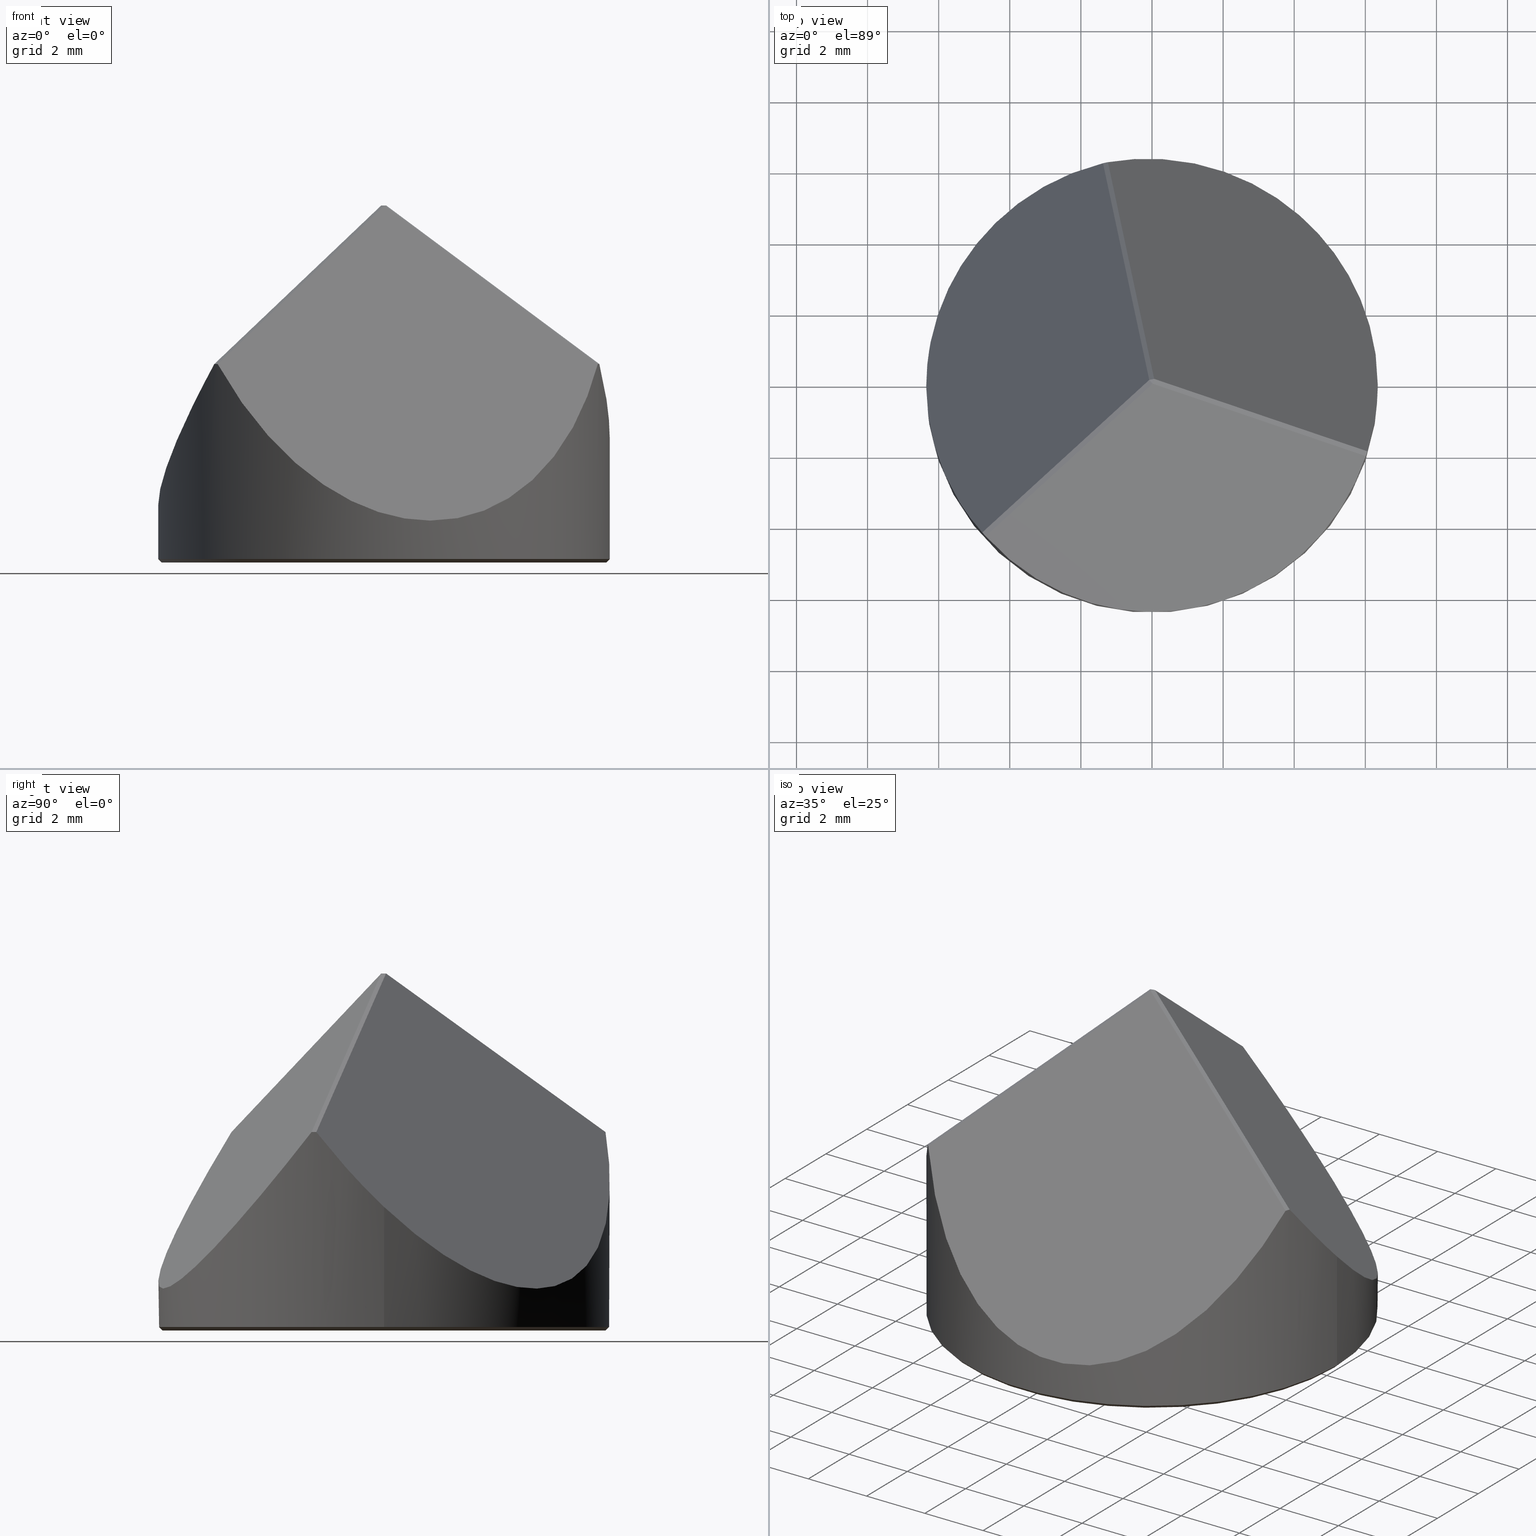
[diagram: canonical four-view strip — front | top / right | iso, engineering-drawing reading convention]
A machine part, canonical four-view strip (front | top / right | iso — engineering-drawing reading convention). The complete STEP part file that produces these views, byte-faithful:
ISO-10303-21;
HEADER;
FILE_DESCRIPTION (( 'STEP AP214' ),
    '1' );
FILE_NAME ('GP16-012-1.STEP',
    '2024-08-13T02:30:25',
    ( 'Windows User' ),
    ( 'P R C' ),
    'SwSTEP 2.0',
    'SolidWorks 2022',
    '' );
FILE_SCHEMA (( 'AUTOMOTIVE_DESIGN' ));
ENDSEC;

DATA;
#1 = ORIENTED_EDGE ( 'NONE', *, *, #110, .T. ) ;
#2 = ADVANCED_FACE ( 'NONE', ( #76 ), #105, .T. ) ;
#3 = ORIENTED_EDGE ( 'NONE', *, *, #196, .T. ) ;
#4 = VECTOR ( 'NONE', #290, 1000.000000000000114 ) ;
#5 = ORIENTED_EDGE ( 'NONE', *, *, #56, .T. ) ;
#6 = UNCERTAINTY_MEASURE_WITH_UNIT (LENGTH_MEASURE( 1.000000000000000082E-05 ), #15, 'distance_accuracy_value', 'NONE');
#7 = EDGE_LOOP ( 'NONE', ( #315, #55, #190, #287 ) ) ;
#8 = DIRECTION ( 'NONE',  ( -0.6678251671697869041, 0.7443181753085479357, 0.000000000000000000 ) ) ;
#9 = VECTOR ( 'NONE', #64, 1000.000000000000000 ) ;
#10 = CARTESIAN_POINT ( 'NONE',  ( -0.07760903269836591511, 0.02536739462952482260, 9.374658006696643398 ) ) ;
#11 = DIRECTION ( 'NONE',  ( 0.1190464341463334241, -0.5649436076728147071, -0.8164965809277265896 ) ) ;
#12 = DIRECTION ( 'NONE',  ( -0.7760903269836916252, 0.2536739462952641300, 0.5773502691896265082 ) ) ;
#13 = CYLINDRICAL_SURFACE ( 'NONE', #167, 6.349999999999999645 ) ;
#14 = DIRECTION ( 'NONE',  ( 0.1683570817218979776, -0.7989509119468815035, 0.5773502691896249539 ) ) ;
#15 =( LENGTH_UNIT ( ) NAMED_UNIT ( * ) SI_UNIT ( .MILLI., .METRE. ) );
#16 = EDGE_CURVE ( 'NONE', #226, #189, #292, .T. ) ;
#17 = PLANE ( 'NONE',  #133 ) ;
#18 =( NAMED_UNIT ( * ) PLANE_ANGLE_UNIT ( ) SI_UNIT ( $, .RADIAN. ) );
#19 = VERTEX_POINT ( 'NONE', #351 ) ;
#20 = CARTESIAN_POINT ( 'NONE',  ( -3.346683942978853743, -2.907747193824004928, 6.269017013437424346 ) ) ;
#21 = PRESENTATION_LAYER_ASSIGNMENT (  '', '', ( #161 ) ) ;
#22 = CARTESIAN_POINT ( 'NONE',  ( -1.240062539693429722, 6.227739951029515275, 4.913675856748689341 ) ) ;
#23 = CARTESIAN_POINT ( 'NONE',  ( -1.240062539693429722, 6.227739951029515275, 4.913675856748689341 ) ) ;
#24 = CARTESIAN_POINT ( 'NONE',  ( 6.250000000000000000, 0.000000000000000000, -0.6700000000000000400 ) ) ;
#25 = ORIENTED_EDGE ( 'NONE', *, *, #278, .T. ) ;
#26 = ORIENTED_EDGE ( 'NONE', *, *, #16, .T. ) ;
#27 = VERTEX_POINT ( 'NONE', #172 ) ;
#28 = VERTEX_POINT ( 'NONE', #85 ) ;
#29 = VECTOR ( 'NONE', #114, 1000.000000000000000 ) ;
#30 = ORIENTED_EDGE ( 'NONE', *, *, #47, .F. ) ;
#31 = EDGE_CURVE ( 'NONE', #28, #273, #74, .T. ) ;
#32 = ADVANCED_FACE ( 'NONE', ( #119 ), #116, .T. ) ;
#33 = CARTESIAN_POINT ( 'NONE',  ( -1.020309708082631550, -8.280476711917238219, -1.671065411290754588 ) ) ;
#34 = AXIS2_PLACEMENT_3D ( 'NONE', #113, #230, #293 ) ;
#35 = LINE ( 'NONE', #82, #258 ) ;
#36 = CARTESIAN_POINT ( 'NONE',  ( 0.000000000000000000, 0.000000000000000000, -0.6699999999999995959 ) ) ;
#37 = EDGE_CURVE ( 'NONE', #195, #135, #349, .T. ) ;
#38 = CARTESIAN_POINT ( 'NONE',  ( 6.251690436881997215, -1.287743840205802348, 4.125649633596846222 ) ) ;
#39 = DIRECTION ( 'NONE',  ( -0.5487787330234530359, 0.1793745676357337837, -0.8164965809277264785 ) ) ;
#40 = PLANE ( 'NONE',  #57 ) ;
#41 = FILL_AREA_STYLE ('',( #209 ) ) ;
#42 = LINE ( 'NONE', #237, #65 ) ;
#43 = EDGE_LOOP ( 'NONE', ( #346, #95, #3, #5 ) ) ;
#44 = CARTESIAN_POINT ( 'NONE',  ( 3.004345022847746627, 7.072882950397803903, -0.3522861678321563828 ) ) ;
#45 = CARTESIAN_POINT ( 'NONE',  ( -6.349999999999998757, 3.103686174823298227, -0.4094046865415405523 ) ) ;
#46 = PLANE ( 'NONE',  #285 ) ;
#47 = EDGE_CURVE ( 'NONE', #218, #137, #83, .T. ) ;
#48 = EDGE_LOOP ( 'NONE', ( #366, #252, #299, #281 ) ) ;
#49 = VECTOR ( 'NONE', #102, 999.9999999999998863 ) ;
#50 = ORIENTED_EDGE ( 'NONE', *, *, #364, .T. ) ;
#51 =( GEOMETRIC_REPRESENTATION_CONTEXT ( 3 ) GLOBAL_UNCERTAINTY_ASSIGNED_CONTEXT ( ( #223 ) ) GLOBAL_UNIT_ASSIGNED_CONTEXT ( ( #97, #120, #156 ) ) REPRESENTATION_CONTEXT ( 'NONE', 'WORKASPACE' ) );
#52 = ORIENTED_EDGE ( 'NONE', *, *, #206, .T. ) ;
#53 = EDGE_LOOP ( 'NONE', ( #316, #282, #162, #284 ) ) ;
#54 = AXIS2_PLACEMENT_3D ( 'NONE', #272, #241, #127 ) ;
#55 = ORIENTED_EDGE ( 'NONE', *, *, #225, .F. ) ;
#56 = EDGE_CURVE ( 'NONE', #27, #19, #239, .T. ) ;
#57 = AXIS2_PLACEMENT_3D ( 'NONE', #87, #204, #325 ) ;
#58 =( LENGTH_UNIT ( ) NAMED_UNIT ( * ) SI_UNIT ( .MILLI., .METRE. ) );
#59 = LINE ( 'NONE', #170, #4 ) ;
#60 = ADVANCED_FACE ( 'NONE', ( #263 ), #13, .T. ) ;
#61 = CARTESIAN_POINT ( 'NONE',  ( -4.742259540638738002, -4.223232986133282019, 4.913304656743202159 ) ) ;
#62 = CARTESIAN_POINT ( 'NONE',  ( 6.057349891955523091, -1.905521526098936880, 4.913675856748682236 ) ) ;
#63 = CARTESIAN_POINT ( 'NONE',  ( 0.000000000000000000, 0.000000000000000000, -0.6699999999999995959 ) ) ;
#64 = DIRECTION ( 'NONE',  ( 0.7071067811865505703, 0.000000000000000000, 0.7071067811865444641 ) ) ;
#65 = VECTOR ( 'NONE', #118, 1000.000000000000114 ) ;
#66 = PLANE ( 'NONE',  #202 ) ;
#67 = DIRECTION ( 'NONE',  ( -1.000000000000000000, 0.000000000000000000, 0.000000000000000000 ) ) ;
#68 = ORIENTED_EDGE ( 'NONE', *, *, #338, .T. ) ;
#69 = CARTESIAN_POINT ( 'NONE',  ( 0.000000000000000000, 0.000000000000000000, 5.000000000000000000 ) ) ;
#70 = CARTESIAN_POINT ( 'NONE',  ( -6.349999999999999645, 0.000000000000000000, -0.5700000000000019496 ) ) ;
#71 = DIRECTION ( 'NONE',  ( 0.000000000000000000, 0.000000000000000000, 1.000000000000000000 ) ) ;
#72 = VECTOR ( 'NONE', #147, 1000.000000000000000 ) ;
#73 = CARTESIAN_POINT ( 'NONE',  ( -1.378444896918001428, 6.198579649093872490, 4.913675856748705328 ) ) ;
#74 =( BOUNDED_CURVE ( )  B_SPLINE_CURVE ( 3, ( #207, #295, #61, #208 ),
 .UNSPECIFIED., .F., .T. ) 
 B_SPLINE_CURVE_WITH_KNOTS ( ( 4, 4 ),
 ( 6.272049537170585332, 6.294321077188586244 ),
 .UNSPECIFIED. ) 
 CURVE ( )  GEOMETRIC_REPRESENTATION_ITEM ( )  RATIONAL_B_SPLINE_CURVE ( ( 1.000000000000000000, 0.9999586653025819283, 0.9999586653025819283, 1.000000000000000000 ) ) 
 REPRESENTATION_ITEM ( '' )  );
#75 = EDGE_CURVE ( 'NONE', #131, #189, #297, .T. ) ;
#76 = FACE_OUTER_BOUND ( 'NONE', #312, .T. ) ;
#77 = ORIENTED_EDGE ( 'NONE', *, *, #47, .T. ) ;
#78 = AXIS2_PLACEMENT_3D ( 'NONE', #319, #12, #139 ) ;
#79 = ORIENTED_EDGE ( 'NONE', *, *, #231, .F. ) ;
#80 = ORIENTED_EDGE ( 'NONE', *, *, #318, .T. ) ;
#81 = PRODUCT_DEFINITION_CONTEXT ( 'detailed design', #280, 'design' ) ;
#82 = CARTESIAN_POINT ( 'NONE',  ( 4.235462525477922568, -1.310016928385307589, 6.269017013437426122 ) ) ;
#83 = LINE ( 'NONE', #236, #185 ) ;
#84 = DIRECTION ( 'NONE',  ( -0.9785110319005749790, -0.2061944724013522467, -0.000000000000000000 ) ) ;
#85 = CARTESIAN_POINT ( 'NONE',  ( -4.678904995037512116, -4.293058122994961145, 4.913675856748716875 ) ) ;
#86 =( NAMED_UNIT ( * ) SI_UNIT ( $, .STERADIAN. ) SOLID_ANGLE_UNIT ( ) );
#87 = CARTESIAN_POINT ( 'NONE',  ( -0.07760903269836591511, 0.02536739462952482260, 9.374658006696643398 ) ) ;
#88 = SURFACE_SIDE_STYLE ('',( #228 ) ) ;
#89 = FACE_OUTER_BOUND ( 'NONE', #181, .T. ) ;
#90 = ADVANCED_FACE ( 'NONE', ( #112 ), #40, .T. ) ;
#91 = CARTESIAN_POINT ( 'NONE',  ( -6.250000000000000888, 7.654042494670958593E-16, -0.6699999999999995959 ) ) ;
#92 = CARTESIAN_POINT ( 'NONE',  ( -4.773349735908087865, -4.187795637170729002, 4.913675856748678683 ) ) ;
#93 = CIRCLE ( 'NONE', #191, 6.349999999999999645 ) ;
#94 = ADVANCED_FACE ( 'NONE', ( #199 ), #268, .T. ) ;
#95 = ORIENTED_EDGE ( 'NONE', *, *, #355, .T. ) ;
#96 = CYLINDRICAL_SURFACE ( 'NONE', #311, 6.349999999999999645 ) ;
#97 =( LENGTH_UNIT ( ) NAMED_UNIT ( * ) SI_UNIT ( .MILLI., .METRE. ) );
#98 = PRODUCT_DEFINITION_SHAPE ( 'NONE', 'NONE',  #300 ) ;
#99 = ADVANCED_FACE ( 'NONE', ( #289 ), #17, .F. ) ;
#100 = DIRECTION ( 'NONE',  ( -1.000000000000000000, 0.000000000000000000, -0.000000000000000000 ) ) ;
#101 =( GEOMETRIC_REPRESENTATION_CONTEXT ( 3 ) GLOBAL_UNCERTAINTY_ASSIGNED_CONTEXT ( ( #6 ) ) GLOBAL_UNIT_ASSIGNED_CONTEXT ( ( #15, #18, #121 ) ) REPRESENTATION_CONTEXT ( 'NONE', 'WORKASPACE' ) );
#102 = DIRECTION ( 'NONE',  ( 0.6077332452617947300, 0.5452769656516172070, 0.5773502691896250649 ) ) ;
#103 = ORIENTED_EDGE ( 'NONE', *, *, #75, .T. ) ;
#104 = ORIENTED_EDGE ( 'NONE', *, *, #313, .T. ) ;
#105 = PLANE ( 'NONE',  #317 ) ;
#106 =( GEOMETRIC_REPRESENTATION_CONTEXT ( 3 ) GLOBAL_UNCERTAINTY_ASSIGNED_CONTEXT ( ( #136 ) ) GLOBAL_UNIT_ASSIGNED_CONTEXT ( ( #58, #168, #86 ) ) REPRESENTATION_CONTEXT ( 'NONE', 'WORKASPACE' ) );
#107 = EDGE_LOOP ( 'NONE', ( #222, #68 ) ) ;
#108 = ORIENTED_EDGE ( 'NONE', *, *, #201, .T. ) ;
#109 = ORIENTED_EDGE ( 'NONE', *, *, #164, .T. ) ;
#110 = EDGE_CURVE ( 'NONE', #28, #151, #148, .T. ) ;
#111 = CARTESIAN_POINT ( 'NONE',  ( 6.350000000000001421, -0.6476245182123612221, 3.417607508736826727 ) ) ;
#112 = FACE_OUTER_BOUND ( 'NONE', #359, .T. ) ;
#113 = CARTESIAN_POINT ( 'NONE',  ( -3.252239202108292648, -3.013009679648221972, 6.269017013437423458 ) ) ;
#114 = DIRECTION ( 'NONE',  ( -0.7071067811865505703, 8.659560562354971069E-17, 0.7071067811865444641 ) ) ;
#115 = CARTESIAN_POINT ( 'NONE',  ( 0.000000000000000000, 0.000000000000000000, -0.6700000000000000400 ) ) ;
#116 = CONICAL_SURFACE ( 'NONE', #232, 6.250000000000000888, 0.7853981633974526089 ) ;
#117 = CARTESIAN_POINT ( 'NONE',  ( -0.8448409661450662078, 4.352186909969163686, 6.269017013437423458 ) ) ;
#118 = DIRECTION ( 'NONE',  ( -0.6077332452617947300, -0.5452769656516170960, -0.5773502691896250649 ) ) ;
#119 = FACE_OUTER_BOUND ( 'NONE', #7, .T. ) ;
#120 =( NAMED_UNIT ( * ) PLANE_ANGLE_UNIT ( ) SI_UNIT ( $, .RADIAN. ) );
#121 =( NAMED_UNIT ( * ) SI_UNIT ( $, .STERADIAN. ) SOLID_ANGLE_UNIT ( ) );
#122 = ORIENTED_EDGE ( 'NONE', *, *, #31, .T. ) ;
#123 = CARTESIAN_POINT ( 'NONE',  ( 6.013412275601540458, -2.039944313858764513, 4.913675856748660919 ) ) ;
#124 = ADVANCED_FACE ( 'NONE', ( #89 ), #66, .F. ) ;
#125 = AXIS2_PLACEMENT_3D ( 'NONE', #217, #71, #361 ) ;
#126 = FACE_OUTER_BOUND ( 'NONE', #220, .T. ) ;
#127 = DIRECTION ( 'NONE',  ( 1.000000000000000000, 0.000000000000000000, 0.000000000000000000 ) ) ;
#128 = CARTESIAN_POINT ( 'NONE',  ( 0.000000000000000000, 0.000000000000000000, -0.6700000000000000400 ) ) ;
#129 = CARTESIAN_POINT ( 'NONE',  ( -1.332426640923746186, 6.208813224159672295, 4.913304656743201271 ) ) ;
#130 = ADVANCED_FACE ( 'NONE', ( #365 ), #46, .T. ) ;
#131 = VERTEX_POINT ( 'NONE', #308 ) ;
#132 = ORIENTED_EDGE ( 'NONE', *, *, #192, .F. ) ;
#133 = AXIS2_PLACEMENT_3D ( 'NONE', #320, #39, #266 ) ;
#134 = ORIENTED_EDGE ( 'NONE', *, *, #110, .F. ) ;
#135 = VERTEX_POINT ( 'NONE', #247 ) ;
#136 = UNCERTAINTY_MEASURE_WITH_UNIT (LENGTH_MEASURE( 1.000000000000000082E-05 ), #58, 'distance_accuracy_value', 'NONE');
#137 = VERTEX_POINT ( 'NONE', #358 ) ;
#138 = EDGE_CURVE ( 'NONE', #19, #195, #188, .T. ) ;
#139 = DIRECTION ( 'NONE',  ( 0.5968741507397007373, 0.000000000000000000, 0.8023348728422323717 ) ) ;
#140 = CARTESIAN_POINT ( 'NONE',  ( 0.01683570817219707388, -0.07989509119469048737, 9.374658006696643398 ) ) ;
#141 = VECTOR ( 'NONE', #275, 1000.000000000000114 ) ;
#142 = CARTESIAN_POINT ( 'NONE',  ( 6.013412275601540458, -2.039944313858764513, 4.913675856748660919 ) ) ;
#143 = CARTESIAN_POINT ( 'NONE',  ( 6.250000000000000888, 0.000000000000000000, -0.6699999999999995959 ) ) ;
#144 = DIRECTION ( 'NONE',  ( 1.000000000000000000, 0.000000000000000000, 0.000000000000000000 ) ) ;
#145 = ADVANCED_FACE ( 'NONE', ( #184 ), #96, .T. ) ;
#146 = CARTESIAN_POINT ( 'NONE',  ( 6.349999999999999645, 7.776507174585692163E-16, 2.805960210696957891 ) ) ;
#147 = DIRECTION ( 'NONE',  ( -0.000000000000000000, -0.000000000000000000, -1.000000000000000000 ) ) ;
#148 =( BOUNDED_CURVE ( )  B_SPLINE_CURVE ( 3, ( #169, #33, #328, #142 ),
 .UNSPECIFIED., .F., .T. ) 
 B_SPLINE_CURVE_WITH_KNOTS ( ( 4, 4 ),
 ( 5.247123525991984394, 7.319247088367180964 ),
 .UNSPECIFIED. ) 
 CURVE ( )  GEOMETRIC_REPRESENTATION_ITEM ( )  RATIONAL_B_SPLINE_CURVE ( ( 1.000000000000000000, 0.6730751062543968155, 0.6730751062543968155, 1.000000000000000000 ) ) 
 REPRESENTATION_ITEM ( '' )  );
#149 = DIRECTION ( 'NONE',  ( -1.000000000000000000, 0.000000000000000000, 0.000000000000000000 ) ) ;
#150 = SURFACE_STYLE_FILL_AREA ( #41 ) ;
#151 = VERTEX_POINT ( 'NONE', #182 ) ;
#152 = LINE ( 'NONE', #20, #49 ) ;
#153 = VECTOR ( 'NONE', #14, 1000.000000000000227 ) ;
#154 = CARTESIAN_POINT ( 'NONE',  ( 4.191524909123932829, -1.444439716145159647, 6.269017013437427011 ) ) ;
#155 = VECTOR ( 'NONE', #84, 1000.000000000000114 ) ;
#156 =( NAMED_UNIT ( * ) SI_UNIT ( $, .STERADIAN. ) SOLID_ANGLE_UNIT ( ) );
#157 = CARTESIAN_POINT ( 'NONE',  ( 6.057349891955523091, -1.905521526098936880, 4.913675856748682236 ) ) ;
#158 = EDGE_CURVE ( 'NONE', #19, #131, #269, .T. ) ;
#159 = CARTESIAN_POINT ( 'NONE',  ( -6.349999999999999645, 0.000000000000000000, 0.9542810377841225433 ) ) ;
#160 = ORIENTED_EDGE ( 'NONE', *, *, #138, .F. ) ;
#161 = STYLED_ITEM ( 'NONE', ( #198 ), #309 ) ;
#162 = ORIENTED_EDGE ( 'NONE', *, *, #31, .F. ) ;
#163 = ORIENTED_EDGE ( 'NONE', *, *, #296, .T. ) ;
#164 = EDGE_CURVE ( 'NONE', #151, #256, #279, .T. ) ;
#165 = ORIENTED_EDGE ( 'NONE', *, *, #37, .F. ) ;
#166 = VERTEX_POINT ( 'NONE', #24 ) ;
#167 = AXIS2_PLACEMENT_3D ( 'NONE', #177, #233, #149 ) ;
#168 =( NAMED_UNIT ( * ) PLANE_ANGLE_UNIT ( ) SI_UNIT ( $, .RADIAN. ) );
#169 = CARTESIAN_POINT ( 'NONE',  ( -4.678904995037512116, -4.293058122994961145, 4.913675856748716875 ) ) ;
#170 = CARTESIAN_POINT ( 'NONE',  ( 0.03880451634919097198, -0.01268369731476594146, 9.374658006696643398 ) ) ;
#171 = CIRCLE ( 'NONE', #125, 6.349999999999999645 ) ;
#172 = CARTESIAN_POINT ( 'NONE',  ( -0.07760903269836591511, 0.02536739462952482260, 9.374658006696643398 ) ) ;
#173 = LINE ( 'NONE', #143, #9 ) ;
#174 = DIRECTION ( 'NONE',  ( 0.000000000000000000, 0.000000000000000000, 1.000000000000000000 ) ) ;
#175 = LINE ( 'NONE', #10, #360 ) ;
#176 = PRODUCT_DEFINITION_FORMATION_WITH_SPECIFIED_SOURCE ( '�κ�', '', #335, .NOT_KNOWN. ) ;
#177 = CARTESIAN_POINT ( 'NONE',  ( 0.000000000000000000, 0.000000000000000000, 5.000000000000000000 ) ) ;
#178 = ADVANCED_FACE ( 'NONE', ( #126 ), #248, .T. ) ;
#179 = PRODUCT_CONTEXT ( 'NONE', #341, 'mechanical' ) ;
#180 = CARTESIAN_POINT ( 'NONE',  ( -6.349999999999999645, 0.000000000000000000, 0.9542810377841225433 ) ) ;
#181 = EDGE_LOOP ( 'NONE', ( #160, #242, #219, #165 ) ) ;
#182 = CARTESIAN_POINT ( 'NONE',  ( 6.013412275601540458, -2.039944313858764513, 4.913675856748660919 ) ) ;
#183 = SURFACE_SIDE_STYLE ('',( #150 ) ) ;
#184 = FACE_OUTER_BOUND ( 'NONE', #331, .T. ) ;
#185 = VECTOR ( 'NONE', #322, 1000.000000000000000 ) ;
#186 = CARTESIAN_POINT ( 'NONE',  ( 6.349999999999999645, 7.776507174585692163E-16, 2.805960210696957891 ) ) ;
#187 = CARTESIAN_POINT ( 'NONE',  ( -1.240062539693429722, 6.227739951029515275, 4.913675856748689341 ) ) ;
#188 =( BOUNDED_CURVE ( )  B_SPLINE_CURVE ( 3, ( #73, #129, #336, #22 ),
 .UNSPECIFIED., .F., .F. ) 
 B_SPLINE_CURVE_WITH_KNOTS ( ( 4, 4 ),
 ( 6.272049537170588884, 6.294321077188590685 ),
 .UNSPECIFIED. ) 
 CURVE ( )  GEOMETRIC_REPRESENTATION_ITEM ( )  RATIONAL_B_SPLINE_CURVE ( ( 1.000000000000000000, 0.9999586653025819283, 0.9999586653025819283, 1.000000000000000000 ) ) 
 REPRESENTATION_ITEM ( '' )  );
#189 = VERTEX_POINT ( 'NONE', #70 ) ;
#190 = ORIENTED_EDGE ( 'NONE', *, *, #231, .T. ) ;
#191 = AXIS2_PLACEMENT_3D ( 'NONE', #348, #288, #257 ) ;
#192 = EDGE_CURVE ( 'NONE', #218, #195, #357, .T. ) ;
#193 = EDGE_LOOP ( 'NONE', ( #254, #26, #310, #79 ) ) ;
#194 = ORIENTED_EDGE ( 'NONE', *, *, #355, .F. ) ;
#195 = VERTEX_POINT ( 'NONE', #187 ) ;
#196 = EDGE_CURVE ( 'NONE', #273, #27, #152, .T. ) ;
#197 = FILL_AREA_STYLE ('',( #264 ) ) ;
#198 = PRESENTATION_STYLE_ASSIGNMENT (( #352 ) ) ;
#199 = FACE_OUTER_BOUND ( 'NONE', #193, .T. ) ;
#200 = FACE_OUTER_BOUND ( 'NONE', #53, .T. ) ;
#201 = EDGE_CURVE ( 'NONE', #189, #137, #171, .T. ) ;
#202 = AXIS2_PLACEMENT_3D ( 'NONE', #259, #11, #245 ) ;
#203 = DIRECTION ( 'NONE',  ( 0.6887517733186879765, 0.000000000000000000, -0.7249972377536088031 ) ) ;
#204 = DIRECTION ( 'NONE',  ( -0.000000000000000000, 0.000000000000000000, 1.000000000000000000 ) ) ;
#205 = PLANE ( 'NONE',  #34 ) ;
#206 = EDGE_CURVE ( 'NONE', #251, #151, #305, .T. ) ;
#207 = CARTESIAN_POINT ( 'NONE',  ( -4.678904995037512116, -4.293058122994961145, 4.913675856748716875 ) ) ;
#208 = CARTESIAN_POINT ( 'NONE',  ( -4.773349735908087865, -4.187795637170729002, 4.913675856748678683 ) ) ;
#209 = FILL_AREA_STYLE_COLOUR ( '', #294 ) ;
#210 = ORIENTED_EDGE ( 'NONE', *, *, #158, .F. ) ;
#211 = DIRECTION ( 'NONE',  ( 0.000000000000000000, 0.000000000000000000, -1.000000000000000000 ) ) ;
#212 = AXIS2_PLACEMENT_3D ( 'NONE', #128, #274, #243 ) ;
#213 = CARTESIAN_POINT ( 'NONE',  ( 0.000000000000000000, 0.000000000000000000, -0.6700000000000000400 ) ) ;
#214 = MECHANICAL_DESIGN_GEOMETRIC_PRESENTATION_REPRESENTATION (  '', ( #327 ), #51 ) ;
#215 = DIRECTION ( 'NONE',  ( 0.000000000000000000, -0.5857106597838069861, -0.8105202175242870455 ) ) ;
#216 = CIRCLE ( 'NONE', #224, 6.250000000000000000 ) ;
#217 = CARTESIAN_POINT ( 'NONE',  ( 0.000000000000000000, 0.000000000000000000, -0.5700000000000019496 ) ) ;
#218 = VERTEX_POINT ( 'NONE', #277 ) ;
#219 = ORIENTED_EDGE ( 'NONE', *, *, #318, .F. ) ;
#220 = EDGE_LOOP ( 'NONE', ( #109, #50, #1 ) ) ;
#221 = CARTESIAN_POINT ( 'NONE',  ( 3.329848234806672025, 2.987642285018697219, 3.163376020178199077 ) ) ;
#222 = ORIENTED_EDGE ( 'NONE', *, *, #225, .T. ) ;
#223 = UNCERTAINTY_MEASURE_WITH_UNIT (LENGTH_MEASURE( 1.000000000000000082E-05 ), #97, 'distance_accuracy_value', 'NONE');
#224 = AXIS2_PLACEMENT_3D ( 'NONE', #115, #298, #67 ) ;
#225 = EDGE_CURVE ( 'NONE', #166, #226, #324, .T. ) ;
#226 = VERTEX_POINT ( 'NONE', #326 ) ;
#227 = CARTESIAN_POINT ( 'NONE',  ( -4.773349735908087865, -4.187795637170729002, 4.913675856748678683 ) ) ;
#228 = SURFACE_STYLE_FILL_AREA ( #197 ) ;
#229 = DIRECTION ( 'NONE',  ( -0.1683570817218979776, 0.7989509119468816145, -0.5773502691896250649 ) ) ;
#230 = DIRECTION ( 'NONE',  ( 0.4297322988771206664, 0.3855690400370828663, -0.8164965809277265896 ) ) ;
#231 = EDGE_CURVE ( 'NONE', #166, #137, #173, .T. ) ;
#232 = AXIS2_PLACEMENT_3D ( 'NONE', #36, #329, #144 ) ;
#233 = DIRECTION ( 'NONE',  ( -0.000000000000000000, -0.000000000000000000, -1.000000000000000000 ) ) ;
#234 = PLANE ( 'NONE',  #78 ) ;
#235 = CLOSED_SHELL ( 'NONE', ( #94, #60, #145, #304, #178, #2, #130, #32, #124, #99, #90, #249 ) ) ;
#236 = CARTESIAN_POINT ( 'NONE',  ( 6.349999999999999645, 7.776507174585692163E-16, 5.000000000000000000 ) ) ;
#237 = CARTESIAN_POINT ( 'NONE',  ( -3.252239202108292648, -3.013009679648221528, 6.269017013437423458 ) ) ;
#238 = ADVANCED_BREP_SHAPE_REPRESENTATION ( 'GP16-012-1', ( #309, #54 ), #101 ) ;
#239 = LINE ( 'NONE', #356, #306 ) ;
#240 = APPLICATION_PROTOCOL_DEFINITION ( 'draft international standard', 'automotive_design', 1998, #280 ) ;
#241 = DIRECTION ( 'NONE',  ( 0.000000000000000000, 0.000000000000000000, 1.000000000000000000 ) ) ;
#242 = ORIENTED_EDGE ( 'NONE', *, *, #56, .F. ) ;
#243 = DIRECTION ( 'NONE',  ( -1.000000000000000000, 0.000000000000000000, 0.000000000000000000 ) ) ;
#244 = AXIS2_PLACEMENT_3D ( 'NONE', #334, #362, #215 ) ;
#245 = DIRECTION ( 'NONE',  ( -0.1683570817218979776, 0.7989509119468816145, -0.5773502691896250649 ) ) ;
#246 = CARTESIAN_POINT ( 'NONE',  ( -6.349999999999999645, -1.558203443857914650, 1.638918488961059960 ) ) ;
#247 = CARTESIAN_POINT ( 'NONE',  ( 0.06077332452618703501, 0.05452769656516021773, 9.374658006696643398 ) ) ;
#248 = PLANE ( 'NONE',  #244 ) ;
#249 = ADVANCED_FACE ( 'NONE', ( #200 ), #205, .F. ) ;
#250 =( BOUNDED_CURVE ( )  B_SPLINE_CURVE ( 3, ( #180, #246, #267, #92 ),
 .UNSPECIFIED., .F., .F. ) 
 B_SPLINE_CURVE_WITH_KNOTS ( ( 4, 4 ),
 ( 0.3159145209226037476, 1.036061781187596509 ),
 .UNSPECIFIED. ) 
 CURVE ( )  GEOMETRIC_REPRESENTATION_ITEM ( )  RATIONAL_B_SPLINE_CURVE ( ( 1.000000000000000000, 0.9572472554283688595, 0.9572472554283688595, 1.000000000000000000 ) ) 
 REPRESENTATION_ITEM ( '' )  );
#251 = VERTEX_POINT ( 'NONE', #261 ) ;
#252 = ORIENTED_EDGE ( 'NONE', *, *, #296, .F. ) ;
#253 = AXIS2_PLACEMENT_3D ( 'NONE', #63, #174, #270 ) ;
#254 = ORIENTED_EDGE ( 'NONE', *, *, #338, .F. ) ;
#255 = ORIENTED_EDGE ( 'NONE', *, *, #192, .T. ) ;
#256 = VERTEX_POINT ( 'NONE', #140 ) ;
#257 = DIRECTION ( 'NONE',  ( -1.000000000000000000, 0.000000000000000000, 0.000000000000000000 ) ) ;
#258 = VECTOR ( 'NONE', #321, 1000.000000000000000 ) ;
#259 = CARTESIAN_POINT ( 'NONE',  ( -0.9832233233696184849, 4.323026608033527118, 6.269017013437423458 ) ) ;
#260 = EDGE_CURVE ( 'NONE', #256, #27, #175, .T. ) ;
#261 = CARTESIAN_POINT ( 'NONE',  ( 6.057349891955523091, -1.905521526098936880, 4.913675856748682236 ) ) ;
#262 = PRESENTATION_LAYER_ASSIGNMENT (  '', '', ( #327 ) ) ;
#263 = FACE_OUTER_BOUND ( 'NONE', #367, .T. ) ;
#264 = FILL_AREA_STYLE_COLOUR ( '', #344 ) ;
#265 =( BOUNDED_CURVE ( )  B_SPLINE_CURVE ( 3, ( #62, #38, #111, #146 ),
 .UNSPECIFIED., .F., .F. ) 
 B_SPLINE_CURVE_WITH_KNOTS ( ( 4, 4 ),
 ( 5.247123525991988835, 5.551902276905597233 ),
 .UNSPECIFIED. ) 
 CURVE ( )  GEOMETRIC_REPRESENTATION_ITEM ( )  RATIONAL_B_SPLINE_CURVE ( ( 1.000000000000000000, 0.9922741279781082113, 0.9922741279781082113, 1.000000000000000000 ) ) 
 REPRESENTATION_ITEM ( '' )  );
#266 = DIRECTION ( 'NONE',  ( 0.7760903269836925134, -0.2536739462952641855, -0.5773502691896251759 ) ) ;
#267 = CARTESIAN_POINT ( 'NONE',  ( -5.800977701894320937, -3.016480676976988295, 3.017661823563334345 ) ) ;
#268 = CONICAL_SURFACE ( 'NONE', #253, 6.250000000000000888, 0.7853981633974526089 ) ;
#269 =( BOUNDED_CURVE ( )  B_SPLINE_CURVE ( 3, ( #337, #301, #45, #159 ),
 .UNSPECIFIED., .F., .F. ) 
 B_SPLINE_CURVE_WITH_KNOTS ( ( 4, 4 ),
 ( 5.247123525991986170, 6.599099828102190202 ),
 .UNSPECIFIED. ) 
 CURVE ( )  GEOMETRIC_REPRESENTATION_ITEM ( )  RATIONAL_B_SPLINE_CURVE ( ( 1.000000000000000000, 0.8533927180882582286, 0.8533927180882582286, 1.000000000000000000 ) ) 
 REPRESENTATION_ITEM ( '' )  );
#270 = DIRECTION ( 'NONE',  ( 1.000000000000000000, 0.000000000000000000, 0.000000000000000000 ) ) ;
#271 = PRESENTATION_STYLE_ASSIGNMENT (( #302 ) ) ;
#272 = CARTESIAN_POINT ( 'NONE',  ( 0.000000000000000000, 0.000000000000000000, 0.000000000000000000 ) ) ;
#273 = VERTEX_POINT ( 'NONE', #227 ) ;
#274 = DIRECTION ( 'NONE',  ( 0.000000000000000000, 0.000000000000000000, -1.000000000000000000 ) ) ;
#275 = DIRECTION ( 'NONE',  ( -0.7760903269836925134, 0.2536739462952641855, 0.5773502691896250649 ) ) ;
#276 = APPLICATION_PROTOCOL_DEFINITION ( 'draft international standard', 'automotive_design', 1998, #341 ) ;
#277 = CARTESIAN_POINT ( 'NONE',  ( 6.349999999999999645, 7.776507174585692163E-16, 2.805960210696957891 ) ) ;
#278 = EDGE_CURVE ( 'NONE', #137, #189, #93, .T. ) ;
#279 = LINE ( 'NONE', #154, #141 ) ;
#280 = APPLICATION_CONTEXT ( 'automotive_design' ) ;
#281 = ORIENTED_EDGE ( 'NONE', *, *, #164, .F. ) ;
#282 = ORIENTED_EDGE ( 'NONE', *, *, #196, .F. ) ;
#283 = ORIENTED_EDGE ( 'NONE', *, *, #37, .T. ) ;
#284 = ORIENTED_EDGE ( 'NONE', *, *, #364, .F. ) ;
#285 = AXIS2_PLACEMENT_3D ( 'NONE', #213, #211, #100 ) ;
#286 = PRODUCT_RELATED_PRODUCT_CATEGORY ( 'part', '', ( #335 ) ) ;
#287 = ORIENTED_EDGE ( 'NONE', *, *, #201, .F. ) ;
#288 = DIRECTION ( 'NONE',  ( 0.000000000000000000, 0.000000000000000000, 1.000000000000000000 ) ) ;
#289 = FACE_OUTER_BOUND ( 'NONE', #48, .T. ) ;
#290 = DIRECTION ( 'NONE',  ( 0.3106858647307911836, 0.9505126477098979620, -0.000000000000000000 ) ) ;
#291 = MECHANICAL_DESIGN_GEOMETRIC_PRESENTATION_REPRESENTATION (  '', ( #161 ), #106 ) ;
#292 = LINE ( 'NONE', #91, #29 ) ;
#293 = DIRECTION ( 'NONE',  ( -0.6077332452617947300, -0.5452769656516170960, -0.5773502691896250649 ) ) ;
#294 = COLOUR_RGB ( '',1.000000000000000000, 1.000000000000000000, 1.000000000000000000 ) ;
#295 = CARTESIAN_POINT ( 'NONE',  ( -4.710776659013159673, -4.258321931798978888, 4.913304656743202159 ) ) ;
#296 = EDGE_CURVE ( 'NONE', #135, #251, #35, .T. ) ;
#297 = LINE ( 'NONE', #353, #72 ) ;
#298 = DIRECTION ( 'NONE',  ( 0.000000000000000000, 0.000000000000000000, -1.000000000000000000 ) ) ;
#299 = ORIENTED_EDGE ( 'NONE', *, *, #333, .F. ) ;
#300 = PRODUCT_DEFINITION ( 'δ֪', '', #176, #81 ) ;
#301 = CARTESIAN_POINT ( 'NONE',  ( -4.408121426120161779, 5.524837858649756406, 1.137126289191133566 ) ) ;
#302 = SURFACE_STYLE_USAGE ( .BOTH. , #183 ) ;
#303 = CARTESIAN_POINT ( 'NONE',  ( 6.350000000000001421, 4.327731766911850464, -1.281354842135791872 ) ) ;
#304 = ADVANCED_FACE ( 'NONE', ( #354 ), #234, .T. ) ;
#305 =( BOUNDED_CURVE ( )  B_SPLINE_CURVE ( 3, ( #157, #339, #307, #123 ),
 .UNSPECIFIED., .F., .F. ) 
 B_SPLINE_CURVE_WITH_KNOTS ( ( 4, 4 ),
 ( 6.272049537170586220, 6.294321077188580027 ),
 .UNSPECIFIED. ) 
 CURVE ( )  GEOMETRIC_REPRESENTATION_ITEM ( )  RATIONAL_B_SPLINE_CURVE ( ( 1.000000000000000000, 0.9999586653025819283, 0.9999586653025819283, 1.000000000000000000 ) ) 
 REPRESENTATION_ITEM ( '' )  );
#306 = VECTOR ( 'NONE', #229, 1000.000000000000114 ) ;
#307 = CARTESIAN_POINT ( 'NONE',  ( 6.028556822411205829, -1.995300740465622225, 4.913304656743207488 ) ) ;
#308 = CARTESIAN_POINT ( 'NONE',  ( -6.349999999999999645, 0.000000000000000000, 0.9542810377841225433 ) ) ;
#309 = MANIFOLD_SOLID_BREP ( '����2', #235 ) ;
#310 = ORIENTED_EDGE ( 'NONE', *, *, #278, .F. ) ;
#311 = AXIS2_PLACEMENT_3D ( 'NONE', #69, #363, #332 ) ;
#312 = EDGE_LOOP ( 'NONE', ( #283, #163, #104, #255 ) ) ;
#313 = EDGE_CURVE ( 'NONE', #251, #218, #265, .T. ) ;
#314 = ORIENTED_EDGE ( 'NONE', *, *, #333, .T. ) ;
#315 = ORIENTED_EDGE ( 'NONE', *, *, #16, .F. ) ;
#316 = ORIENTED_EDGE ( 'NONE', *, *, #260, .T. ) ;
#317 = AXIS2_PLACEMENT_3D ( 'NONE', #221, #345, #203 ) ;
#318 = EDGE_CURVE ( 'NONE', #135, #27, #323, .T. ) ;
#319 = CARTESIAN_POINT ( 'NONE',  ( -4.252298233650111392, 1.389912019579999214, 3.163376020178195969 ) ) ;
#320 = CARTESIAN_POINT ( 'NONE',  ( 4.235462525477922568, -1.310016928385308477, 6.269017013437426122 ) ) ;
#321 = DIRECTION ( 'NONE',  ( 0.7760903269836925134, -0.2536739462952641300, -0.5773502691896251759 ) ) ;
#322 = DIRECTION ( 'NONE',  ( -0.000000000000000000, -0.000000000000000000, -1.000000000000000000 ) ) ;
#323 = LINE ( 'NONE', #350, #155 ) ;
#324 = CIRCLE ( 'NONE', #212, 6.250000000000000000 ) ;
#325 = DIRECTION ( 'NONE',  ( 1.000000000000000000, 0.000000000000000000, 0.000000000000000000 ) ) ;
#326 = CARTESIAN_POINT ( 'NONE',  ( -6.250000000000000000, 7.715274834628325378E-16, -0.6700000000000000400 ) ) ;
#327 = STYLED_ITEM ( 'NONE', ( #271 ), #238 ) ;
#328 = CARTESIAN_POINT ( 'NONE',  ( 4.274947424087383041, -7.164645908787123929, -1.671065411290782565 ) ) ;
#329 = DIRECTION ( 'NONE',  ( 0.000000000000000000, 0.000000000000000000, 1.000000000000000000 ) ) ;
#330 = SHAPE_DEFINITION_REPRESENTATION ( #98, #238 ) ;
#331 = EDGE_LOOP ( 'NONE', ( #30, #342, #52, #134, #122, #194, #103, #108 ) ) ;
#332 = DIRECTION ( 'NONE',  ( -1.000000000000000000, 0.000000000000000000, 0.000000000000000000 ) ) ;
#333 = EDGE_CURVE ( 'NONE', #256, #135, #59, .T. ) ;
#334 = CARTESIAN_POINT ( 'NONE',  ( 0.9224499988434438080, -4.377554304598696433, 3.163376020178197301 ) ) ;
#335 = PRODUCT ( 'GP16-012-1', 'GP16-012-1', '', ( #179 ) ) ;
#336 = CARTESIAN_POINT ( 'NONE',  ( -1.286297281772450285, 6.218533726598914235, 4.913304656743201271 ) ) ;
#337 = CARTESIAN_POINT ( 'NONE',  ( -1.378444896918001428, 6.198579649093872490, 4.913675856748705328 ) ) ;
#338 = EDGE_CURVE ( 'NONE', #226, #166, #216, .T. ) ;
#339 = CARTESIAN_POINT ( 'NONE',  ( 6.043203299936918071, -1.950491292360698736, 4.913304656743207488 ) ) ;
#340 = ORIENTED_EDGE ( 'NONE', *, *, #138, .T. ) ;
#341 = APPLICATION_CONTEXT ( 'automotive_design' ) ;
#342 = ORIENTED_EDGE ( 'NONE', *, *, #313, .F. ) ;
#343 = ORIENTED_EDGE ( 'NONE', *, *, #260, .F. ) ;
#344 = COLOUR_RGB ( '',1.000000000000000000, 1.000000000000000000, 1.000000000000000000 ) ;
#345 = DIRECTION ( 'NONE',  ( 0.6077332452617939529, 0.5452769656516166519, 0.5773502691896265082 ) ) ;
#346 = ORIENTED_EDGE ( 'NONE', *, *, #158, .T. ) ;
#347 = ORIENTED_EDGE ( 'NONE', *, *, #75, .F. ) ;
#348 = CARTESIAN_POINT ( 'NONE',  ( 0.000000000000000000, 0.000000000000000000, -0.5700000000000019496 ) ) ;
#349 = LINE ( 'NONE', #117, #153 ) ;
#350 = CARTESIAN_POINT ( 'NONE',  ( -0.07760903269836591511, 0.02536739462952482260, 9.374658006696643398 ) ) ;
#351 = CARTESIAN_POINT ( 'NONE',  ( -1.378444896918001428, 6.198579649093872490, 4.913675856748705328 ) ) ;
#352 = SURFACE_STYLE_USAGE ( .BOTH. , #88 ) ;
#353 = CARTESIAN_POINT ( 'NONE',  ( -6.349999999999999645, 0.000000000000000000, 5.000000000000000000 ) ) ;
#354 = FACE_OUTER_BOUND ( 'NONE', #43, .T. ) ;
#355 = EDGE_CURVE ( 'NONE', #131, #273, #250, .T. ) ;
#356 = CARTESIAN_POINT ( 'NONE',  ( -0.9832233233696189290, 4.323026608033527118, 6.269017013437423458 ) ) ;
#357 =( BOUNDED_CURVE ( )  B_SPLINE_CURVE ( 3, ( #186, #303, #44, #23 ),
 .UNSPECIFIED., .F., .F. ) 
 B_SPLINE_CURVE_WITH_KNOTS ( ( 4, 4 ),
 ( 5.551902276905597233, 7.319247088367184517 ),
 .UNSPECIFIED. ) 
 CURVE ( )  GEOMETRIC_REPRESENTATION_ITEM ( )  RATIONAL_B_SPLINE_CURVE ( ( 1.000000000000000000, 0.7562109254666704583, 0.7562109254666704583, 1.000000000000000000 ) ) 
 REPRESENTATION_ITEM ( '' )  );
#358 = CARTESIAN_POINT ( 'NONE',  ( 6.349999999999999645, 7.776507174585692163E-16, -0.5700000000000019496 ) ) ;
#359 = EDGE_LOOP ( 'NONE', ( #314, #80, #343 ) ) ;
#360 = VECTOR ( 'NONE', #8, 1000.000000000000000 ) ;
#361 = DIRECTION ( 'NONE',  ( -1.000000000000000000, 0.000000000000000000, 0.000000000000000000 ) ) ;
#362 = DIRECTION ( 'NONE',  ( 0.1683570817218978666, -0.7989509119468806153, 0.5773502691896265082 ) ) ;
#363 = DIRECTION ( 'NONE',  ( -0.000000000000000000, -0.000000000000000000, -1.000000000000000000 ) ) ;
#364 = EDGE_CURVE ( 'NONE', #256, #28, #42, .T. ) ;
#365 = FACE_OUTER_BOUND ( 'NONE', #107, .T. ) ;
#366 = ORIENTED_EDGE ( 'NONE', *, *, #206, .F. ) ;
#367 = EDGE_LOOP ( 'NONE', ( #132, #77, #25, #347, #210, #340 ) ) ;
ENDSEC;
END-ISO-10303-21;
